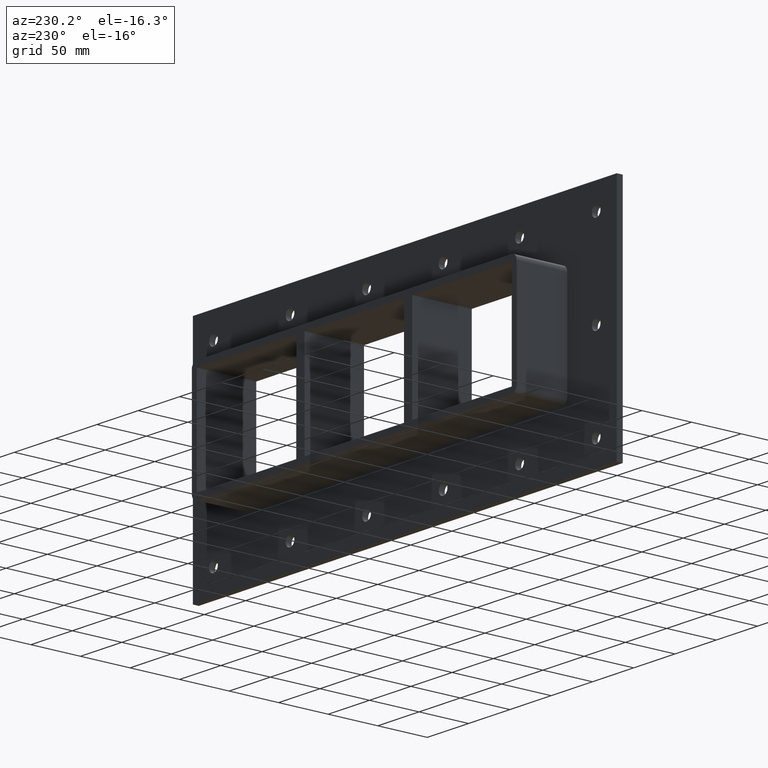
[diagram: clean part render]
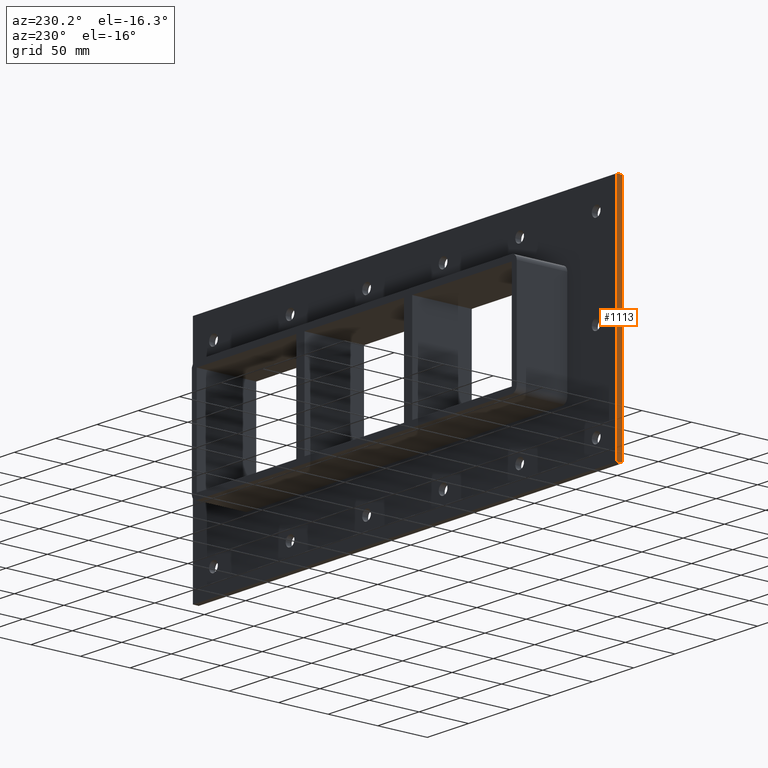
[diagram: same view with one face highlighted and labeled with its STEP entity id]
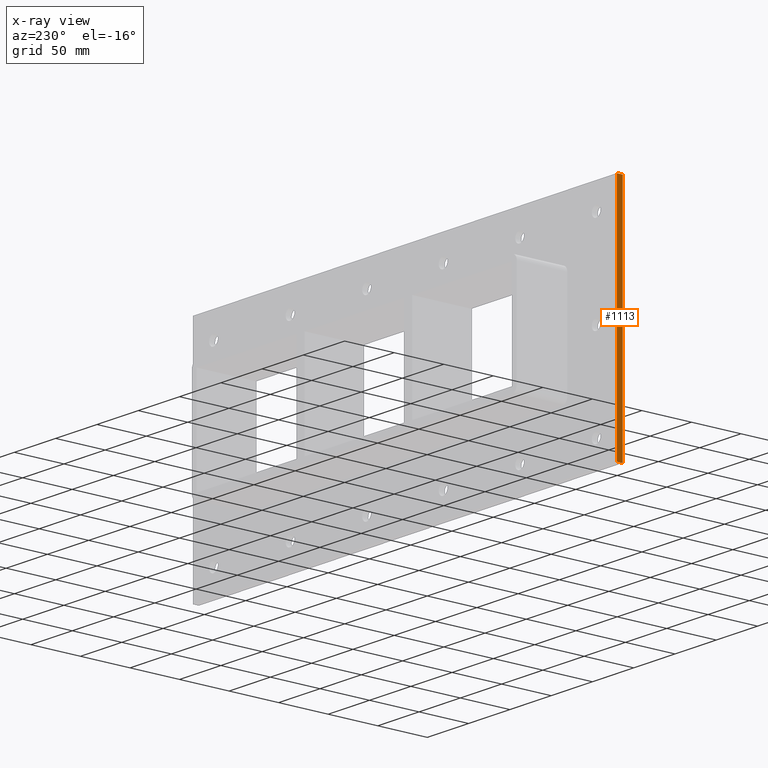
[diagram: x-ray of the same camera — body ghosted, the highlighted face saturated]
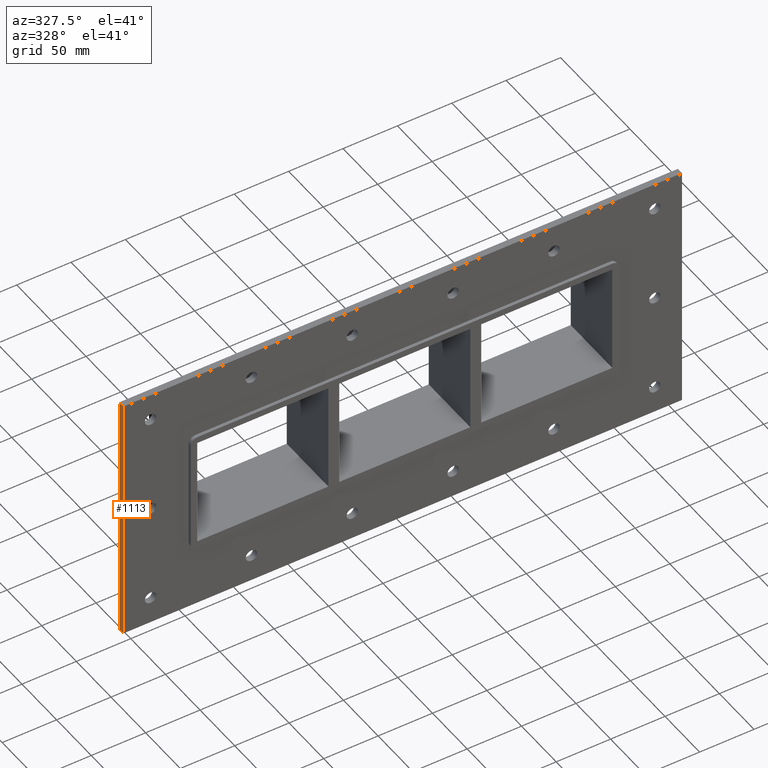
[diagram: same view with one face highlighted and labeled with its STEP entity id]
A machine part, auxiliary view. The second image highlights one B-rep face of the part: STEP entity #1113.
The next image is the same camera in x-ray: the body ghosted, the highlighted face saturated — about 0% of this face is hidden behind the body in this view.
A second angle (auxiliary view) of the same face is appended — the face is thin or edge-on in the first view.
In plain terms, the highlighted planar face has unit normal (-1, 0, 0).
Its self-contained STEP definition (entity closure, byte-faithful):
#793=CARTESIAN_POINT('',(-256.75000000000006,6.000000000000001,116.49999999999997));
#794=VERTEX_POINT('',#793);
#811=CARTESIAN_POINT('',(-256.75000000000006,6.000000000000001,-116.5));
#812=VERTEX_POINT('',#811);
#819=CARTESIAN_POINT('',(-256.75000000000006,6.000000000000001,-116.49999999999999));
#820=DIRECTION('',(0.0,0.0,1.0));
#821=VECTOR('',#820,232.99999999999997);
#822=LINE('',#819,#821);
#823=EDGE_CURVE('',#812,#794,#822,.T.);
#945=CARTESIAN_POINT('',(-256.75000000000006,0.0,116.49999999999997));
#946=VERTEX_POINT('',#945);
#955=CARTESIAN_POINT('',(-256.75000000000006,0.0,-116.49999999999999));
#956=VERTEX_POINT('',#955);
#957=CARTESIAN_POINT('',(-256.75000000000006,0.0,-116.49999999999999));
#958=DIRECTION('',(0.0,0.0,1.0));
#959=VECTOR('',#958,232.99999999999997);
#960=LINE('',#957,#959);
#961=EDGE_CURVE('',#956,#946,#960,.T.);
#1092=CARTESIAN_POINT('',(-256.75000000000006,0.0,-116.49999999999999));
#1093=DIRECTION('',(-1.0,0.0,0.0));
#1094=DIRECTION('',(0.0,0.0,1.0));
#1095=AXIS2_PLACEMENT_3D('',#1092,#1093,#1094);
#1096=PLANE('',#1095);
#1097=ORIENTED_EDGE('',*,*,#961,.T.);
#1098=CARTESIAN_POINT('',(-256.75000000000006,0.0,116.49999999999997));
#1099=DIRECTION('',(0.0,1.0,0.0));
#1100=VECTOR('',#1099,6.000000000000001);
#1101=LINE('',#1098,#1100);
#1102=EDGE_CURVE('',#946,#794,#1101,.T.);
#1103=ORIENTED_EDGE('',*,*,#1102,.T.);
#1104=ORIENTED_EDGE('',*,*,#823,.F.);
#1105=CARTESIAN_POINT('',(-256.75000000000006,0.0,-116.49999999999999));
#1106=DIRECTION('',(0.0,1.0,0.0));
#1107=VECTOR('',#1106,6.000000000000001);
#1108=LINE('',#1105,#1107);
#1109=EDGE_CURVE('',#956,#812,#1108,.T.);
#1110=ORIENTED_EDGE('',*,*,#1109,.F.);
#1111=EDGE_LOOP('',(#1097,#1103,#1104,#1110));
#1112=FACE_OUTER_BOUND('',#1111,.T.);
#1113=ADVANCED_FACE('',(#1112),#1096,.T.);